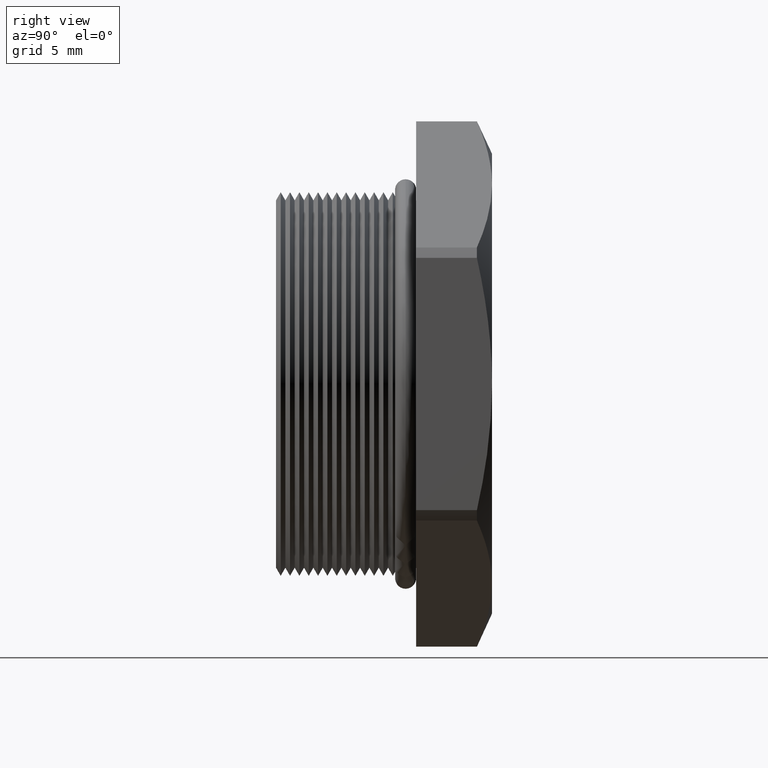
[diagram: clean part render]
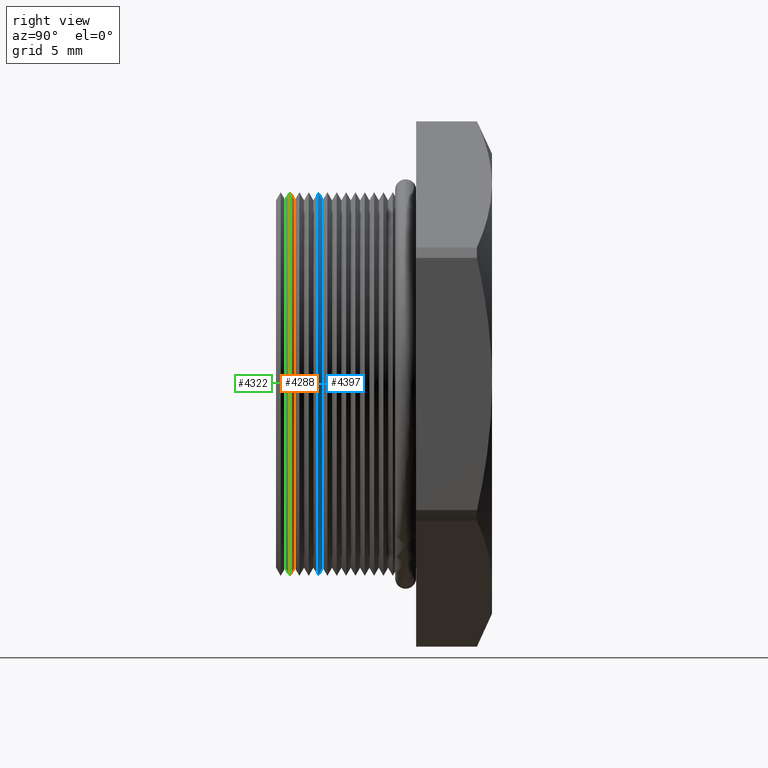
[diagram: same view with three faces highlighted in distinct colors, each labeled with its STEP entity id]
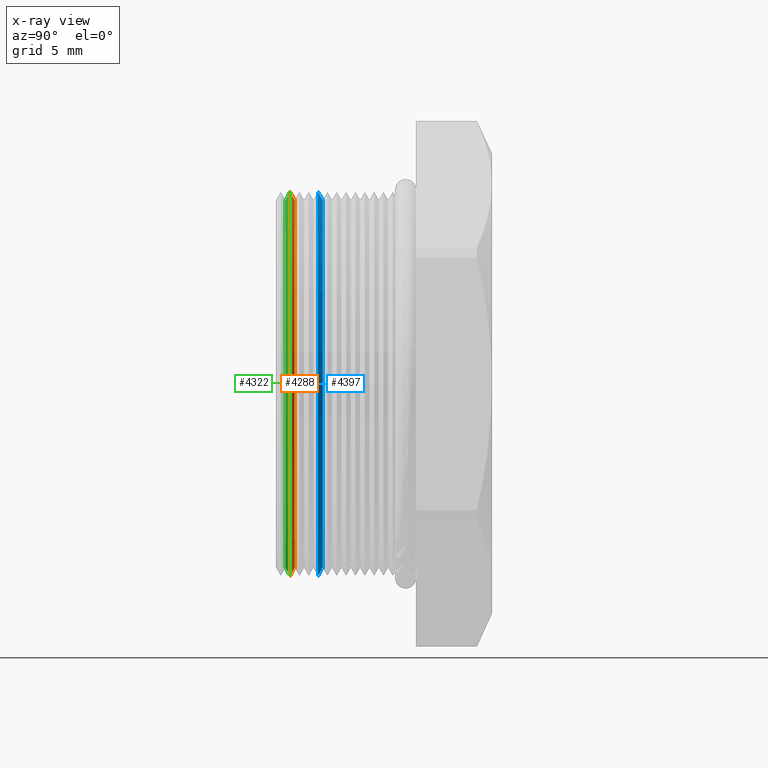
[diagram: x-ray of the same camera — body ghosted, the three highlighted faces saturated]
A machine part, right view with three faces highlighted in distinct colors.
The next image is the same camera in x-ray (body ghosted, the three faces saturated) — at least one of them is partly hidden behind the body in this view.
Their STEP definitions:

[orange] entity #4288 — the highlighted conical surface has half-angle 60 deg.
#677 = CARTESIAN_POINT ( 'NONE',  ( 3.857637417314162700E-017, 0.06939724481000893200, 0.3150000000000000000 ) ) ;
#678 = LINE ( 'NONE', #677, #739 ) ;
#694 = DIRECTION ( 'NONE',  ( 0.0000000000000000000, 0.0000000000000000000, -1.000000000000000000 ) ) ;
#695 = DIRECTION ( 'NONE',  ( 0.0000000000000000000, -1.000000000000000000, 0.0000000000000000000 ) ) ;
#696 = CARTESIAN_POINT ( 'NONE',  ( 0.0000000000000000000, 0.06939724481000893200, 0.0000000000000000000 ) ) ;
#697 = AXIS2_PLACEMENT_3D ( 'NONE', #696, #695, #694 ) ;
#698 = CONICAL_SURFACE ( 'NONE', #697, 0.3150000000000000000, 1.047197551196596700 ) ;
#699 = FACE_OUTER_BOUND ( 'NONE', #4361, .T. ) ;
#738 = DIRECTION ( 'NONE',  ( 1.060575238724906300E-016, -0.5000000000000008900, 0.8660254037844380400 ) ) ;
#739 = VECTOR ( 'NONE', #738, 39.37007874015748100 ) ;
#779 = CARTESIAN_POINT ( 'NONE',  ( 3.857637417314162700E-017, 0.06939724481000893200, 0.3150000000000000000 ) ) ;
#782 = DIRECTION ( 'NONE',  ( 0.0000000000000000000, 0.0000000000000000000, 1.000000000000000000 ) ) ;
#783 = DIRECTION ( 'NONE',  ( -0.0000000000000000000, 1.000000000000000000, -0.0000000000000000000 ) ) ;
#784 = CARTESIAN_POINT ( 'NONE',  ( 0.0000000000000000000, 0.06144489058294798400, 0.0000000000000000000 ) ) ;
#785 = AXIS2_PLACEMENT_3D ( 'NONE', #784, #783, #782 ) ;
#786 = CIRCLE ( 'NONE', #785, 0.3287738815610546400 ) ;
#787 = CARTESIAN_POINT ( 'NONE',  ( 0.0000000000000000000, 0.06144489058294798400, -0.3287738815610546400 ) ) ;
#794 = CARTESIAN_POINT ( 'NONE',  ( 0.0000000000000000000, 0.06939724481000893200, -0.3150000000000000000 ) ) ;
#796 = DIRECTION ( 'NONE',  ( 0.0000000000000000000, -0.5000000000000008900, -0.8660254037844380400 ) ) ;
#797 = VECTOR ( 'NONE', #796, 39.37007874015748100 ) ;
#798 = CARTESIAN_POINT ( 'NONE',  ( 0.0000000000000000000, 0.06939724481000893200, -0.3150000000000000000 ) ) ;
#799 = LINE ( 'NONE', #798, #797 ) ;
#812 = CARTESIAN_POINT ( 'NONE',  ( 4.026318816969966200E-017, 0.06144489058294798400, 0.3287738815610546400 ) ) ;
#851 = DIRECTION ( 'NONE',  ( 0.0000000000000000000, 0.0000000000000000000, -1.000000000000000000 ) ) ;
#852 = DIRECTION ( 'NONE',  ( 0.0000000000000000000, -1.000000000000000000, 0.0000000000000000000 ) ) ;
#853 = CARTESIAN_POINT ( 'NONE',  ( 0.0000000000000000000, 0.06939724481000893200, 0.0000000000000000000 ) ) ;
#854 = AXIS2_PLACEMENT_3D ( 'NONE', #853, #852, #851 ) ;
#855 = CIRCLE ( 'NONE', #854, 0.3150000000000000000 ) ;
#4288 = ADVANCED_FACE ( 'NONE', ( #699 ), #698, .T. ) ;
#4296 = EDGE_CURVE ( 'NONE', #4338, #4354, #678, .T. ) ;
#4327 = ORIENTED_EDGE ( 'NONE', *, *, #4328, .F. ) ;
#4328 = EDGE_CURVE ( 'NONE', #4330, #4333, #799, .T. ) ;
#4330 = VERTEX_POINT ( 'NONE', #794 ) ;
#4331 = ORIENTED_EDGE ( 'NONE', *, *, #4296, .T. ) ;
#4333 = VERTEX_POINT ( 'NONE', #787 ) ;
#4334 = EDGE_CURVE ( 'NONE', #4354, #4333, #786, .T. ) ;
#4338 = VERTEX_POINT ( 'NONE', #779 ) ;
#4345 = ORIENTED_EDGE ( 'NONE', *, *, #4368, .T. ) ;
#4354 = VERTEX_POINT ( 'NONE', #812 ) ;
#4359 = ORIENTED_EDGE ( 'NONE', *, *, #4334, .T. ) ;
#4361 = EDGE_LOOP ( 'NONE', ( #4345, #4331, #4359, #4327 ) ) ;
#4368 = EDGE_CURVE ( 'NONE', #4330, #4338, #855, .T. ) ;

[blue] entity #4397 — the highlighted conical surface has half-angle 60 deg.
#838 = DIRECTION ( 'NONE',  ( 0.0000000000000000000, -0.5000000000000008900, -0.8660254037844380400 ) ) ;
#839 = VECTOR ( 'NONE', #838, 39.37007874015748100 ) ;
#840 = CARTESIAN_POINT ( 'NONE',  ( 0.0000000000000000000, 0.1174272448100089200, -0.3150000000000000000 ) ) ;
#841 = LINE ( 'NONE', #840, #839 ) ;
#842 = CARTESIAN_POINT ( 'NONE',  ( 0.0000000000000000000, 0.1174272448100089200, -0.3150000000000000000 ) ) ;
#843 = DIRECTION ( 'NONE',  ( 0.0000000000000000000, 0.0000000000000000000, -1.000000000000000000 ) ) ;
#844 = DIRECTION ( 'NONE',  ( 0.0000000000000000000, -1.000000000000000000, 0.0000000000000000000 ) ) ;
#845 = CARTESIAN_POINT ( 'NONE',  ( 0.0000000000000000000, 0.1174272448100089200, 0.0000000000000000000 ) ) ;
#846 = AXIS2_PLACEMENT_3D ( 'NONE', #845, #844, #843 ) ;
#847 = CIRCLE ( 'NONE', #846, 0.3150000000000000000 ) ;
#878 = CARTESIAN_POINT ( 'NONE',  ( 3.857637417314162700E-017, 0.1174272448100089200, 0.3150000000000000000 ) ) ;
#901 = DIRECTION ( 'NONE',  ( 1.060575238724906300E-016, -0.5000000000000008900, 0.8660254037844380400 ) ) ;
#902 = VECTOR ( 'NONE', #901, 39.37007874015748100 ) ;
#903 = CARTESIAN_POINT ( 'NONE',  ( 3.857637417314162700E-017, 0.1174272448100089200, 0.3150000000000000000 ) ) ;
#904 = LINE ( 'NONE', #903, #902 ) ;
#905 = CARTESIAN_POINT ( 'NONE',  ( 4.026318816969966200E-017, 0.1094748905829479700, 0.3287738815610546400 ) ) ;
#906 = DIRECTION ( 'NONE',  ( 0.0000000000000000000, 0.0000000000000000000, 1.000000000000000000 ) ) ;
#907 = DIRECTION ( 'NONE',  ( -0.0000000000000000000, 1.000000000000000000, -0.0000000000000000000 ) ) ;
#908 = CARTESIAN_POINT ( 'NONE',  ( 0.0000000000000000000, 0.1094748905829479700, 0.0000000000000000000 ) ) ;
#909 = AXIS2_PLACEMENT_3D ( 'NONE', #908, #907, #906 ) ;
#910 = CIRCLE ( 'NONE', #909, 0.3287738815610546400 ) ;
#911 = DIRECTION ( 'NONE',  ( 0.0000000000000000000, 0.0000000000000000000, -1.000000000000000000 ) ) ;
#912 = DIRECTION ( 'NONE',  ( 0.0000000000000000000, -1.000000000000000000, 0.0000000000000000000 ) ) ;
#913 = CARTESIAN_POINT ( 'NONE',  ( 0.0000000000000000000, 0.1174272448100089200, 0.0000000000000000000 ) ) ;
#914 = AXIS2_PLACEMENT_3D ( 'NONE', #913, #912, #911 ) ;
#916 = CONICAL_SURFACE ( 'NONE', #914, 0.3150000000000000000, 1.047197551196596700 ) ;
#917 = FACE_OUTER_BOUND ( 'NONE', #4371, .T. ) ;
#998 = CARTESIAN_POINT ( 'NONE',  ( 0.0000000000000000000, 0.1094748905829479700, -0.3287738815610546400 ) ) ;
#4371 = EDGE_LOOP ( 'NONE', ( #4372, #4385, #4405, #4376 ) ) ;
#4372 = ORIENTED_EDGE ( 'NONE', *, *, #4373, .T. ) ;
#4373 = EDGE_CURVE ( 'NONE', #4374, #4384, #847, .T. ) ;
#4374 = VERTEX_POINT ( 'NONE', #842 ) ;
#4376 = ORIENTED_EDGE ( 'NONE', *, *, #4377, .F. ) ;
#4377 = EDGE_CURVE ( 'NONE', #4374, #4450, #841, .T. ) ;
#4384 = VERTEX_POINT ( 'NONE', #878 ) ;
#4385 = ORIENTED_EDGE ( 'NONE', *, *, #4404, .T. ) ;
#4397 = ADVANCED_FACE ( 'NONE', ( #917 ), #916, .T. ) ;
#4402 = EDGE_CURVE ( 'NONE', #4403, #4450, #910, .T. ) ;
#4403 = VERTEX_POINT ( 'NONE', #905 ) ;
#4404 = EDGE_CURVE ( 'NONE', #4384, #4403, #904, .T. ) ;
#4405 = ORIENTED_EDGE ( 'NONE', *, *, #4402, .T. ) ;
#4450 = VERTEX_POINT ( 'NONE', #998 ) ;

[green] entity #4322 — the highlighted conical surface has half-angle 60 deg.
#277 = CARTESIAN_POINT ( 'NONE',  ( 0.0000000000000000000, 0.05349253635588707700, -0.3150000000000000000 ) ) ;
#594 = CARTESIAN_POINT ( 'NONE',  ( 3.857637417314162700E-017, 0.05349253635588707700, 0.3150000000000000000 ) ) ;
#734 = DIRECTION ( 'NONE',  ( 0.0000000000000000000, 0.4999999999999991100, 0.8660254037844391500 ) ) ;
#735 = VECTOR ( 'NONE', #734, 39.37007874015748100 ) ;
#736 = CARTESIAN_POINT ( 'NONE',  ( 0.0000000000000000000, 0.06144489058294798400, 0.3287738815610546400 ) ) ;
#737 = LINE ( 'NONE', #736, #735 ) ;
#740 = DIRECTION ( 'NONE',  ( -0.0000000000000000000, 1.000000000000000000, -0.0000000000000000000 ) ) ;
#741 = CARTESIAN_POINT ( 'NONE',  ( 0.0000000000000000000, 0.05349253635588707700, 0.0000000000000000000 ) ) ;
#742 = AXIS2_PLACEMENT_3D ( 'NONE', #741, #740, #801 ) ;
#743 = DIRECTION ( 'NONE',  ( 0.0000000000000000000, 0.0000000000000000000, 1.000000000000000000 ) ) ;
#744 = DIRECTION ( 'NONE',  ( -0.0000000000000000000, 1.000000000000000000, -0.0000000000000000000 ) ) ;
#745 = CARTESIAN_POINT ( 'NONE',  ( 0.0000000000000000000, 0.06144489058294798400, 0.0000000000000000000 ) ) ;
#746 = AXIS2_PLACEMENT_3D ( 'NONE', #745, #744, #743 ) ;
#747 = CIRCLE ( 'NONE', #742, 0.3150000000000000000 ) ;
#748 = CONICAL_SURFACE ( 'NONE', #746, 0.3287738815610546400, 1.047197551196598700 ) ;
#749 = FACE_OUTER_BOUND ( 'NONE', #4323, .T. ) ;
#782 = DIRECTION ( 'NONE',  ( 0.0000000000000000000, 0.0000000000000000000, 1.000000000000000000 ) ) ;
#783 = DIRECTION ( 'NONE',  ( -0.0000000000000000000, 1.000000000000000000, -0.0000000000000000000 ) ) ;
#784 = CARTESIAN_POINT ( 'NONE',  ( 0.0000000000000000000, 0.06144489058294798400, 0.0000000000000000000 ) ) ;
#785 = AXIS2_PLACEMENT_3D ( 'NONE', #784, #783, #782 ) ;
#786 = CIRCLE ( 'NONE', #785, 0.3287738815610546400 ) ;
#787 = CARTESIAN_POINT ( 'NONE',  ( 0.0000000000000000000, 0.06144489058294798400, -0.3287738815610546400 ) ) ;
#801 = DIRECTION ( 'NONE',  ( 0.0000000000000000000, 0.0000000000000000000, 1.000000000000000000 ) ) ;
#812 = CARTESIAN_POINT ( 'NONE',  ( 4.026318816969966200E-017, 0.06144489058294798400, 0.3287738815610546400 ) ) ;
#817 = DIRECTION ( 'NONE',  ( 1.060575238724907500E-016, 0.4999999999999991100, -0.8660254037844391500 ) ) ;
#818 = VECTOR ( 'NONE', #817, 39.37007874015748100 ) ;
#819 = CARTESIAN_POINT ( 'NONE',  ( 4.026318816969965600E-017, 0.06144489058294798400, -0.3287738815610546400 ) ) ;
#820 = LINE ( 'NONE', #819, #818 ) ;
#4071 = VERTEX_POINT ( 'NONE', #277 ) ;
#4245 = VERTEX_POINT ( 'NONE', #594 ) ;
#4292 = ORIENTED_EDGE ( 'NONE', *, *, #4351, .T. ) ;
#4297 = EDGE_CURVE ( 'NONE', #4245, #4354, #737, .T. ) ;
#4322 = ADVANCED_FACE ( 'NONE', ( #749 ), #748, .T. ) ;
#4323 = EDGE_LOOP ( 'NONE', ( #4324, #4292, #4346, #4358 ) ) ;
#4324 = ORIENTED_EDGE ( 'NONE', *, *, #4325, .T. ) ;
#4325 = EDGE_CURVE ( 'NONE', #4245, #4071, #747, .T. ) ;
#4333 = VERTEX_POINT ( 'NONE', #787 ) ;
#4334 = EDGE_CURVE ( 'NONE', #4354, #4333, #786, .T. ) ;
#4346 = ORIENTED_EDGE ( 'NONE', *, *, #4334, .F. ) ;
#4351 = EDGE_CURVE ( 'NONE', #4071, #4333, #820, .T. ) ;
#4354 = VERTEX_POINT ( 'NONE', #812 ) ;
#4358 = ORIENTED_EDGE ( 'NONE', *, *, #4297, .F. ) ;